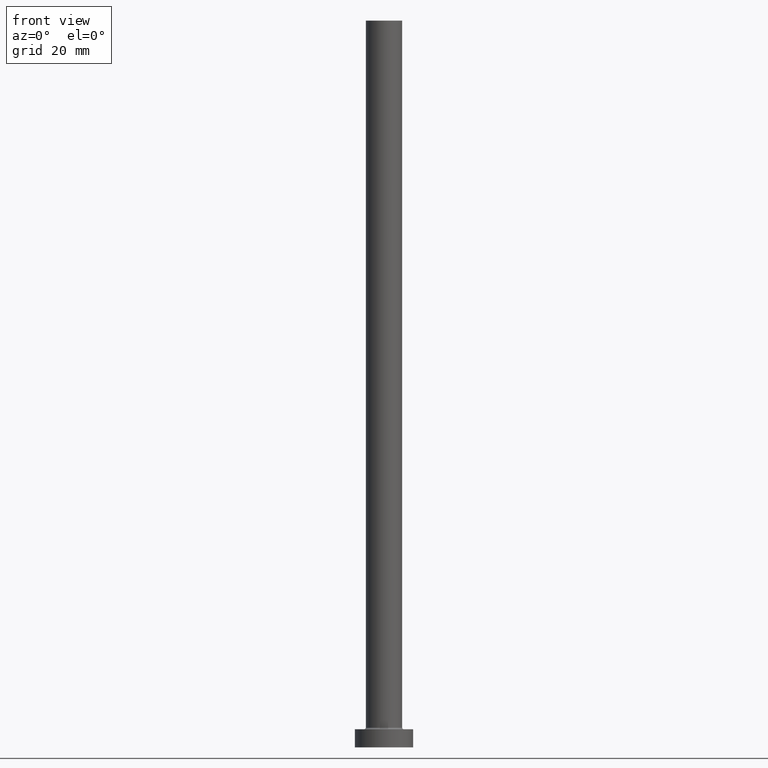
[diagram: clean part render]
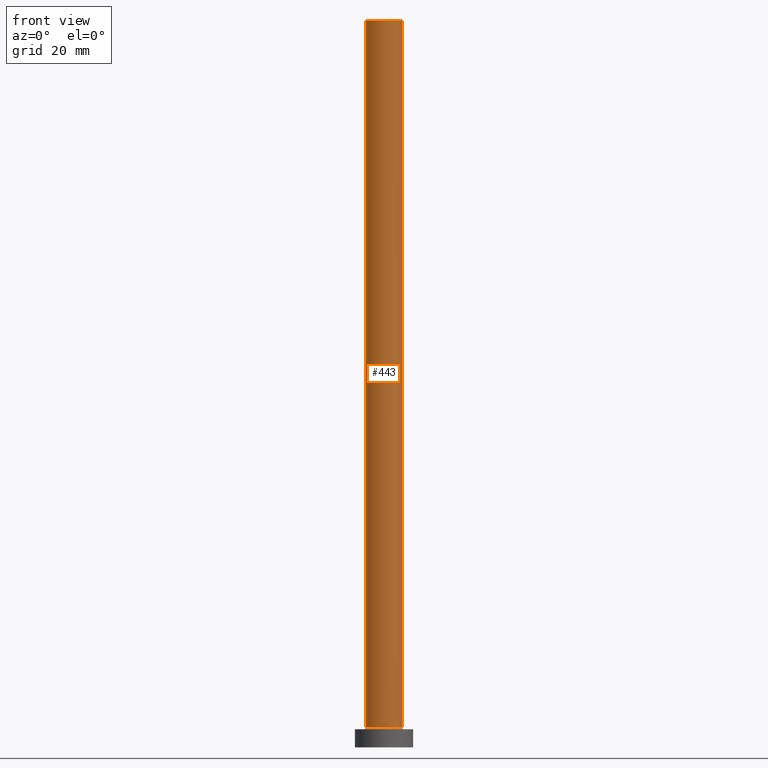
[diagram: same view with one face highlighted and labeled with its STEP entity id]
A machine part, front view. The second image highlights one B-rep face of the part: STEP entity #443.
In plain terms, the highlighted cylindrical surface (edge-blend (fillet) strip) has radius 5 mm, axis along (-0, -0, -1).
Its self-contained STEP definition (entity closure, byte-faithful):
#3 = ORIENTED_EDGE ( 'NONE', *, *, #193, .T. ) ;
#10 = DIRECTION ( 'NONE',  ( 0.000000000000000000, 0.000000000000000000, 1.000000000000000000 ) ) ;
#33 = VERTEX_POINT ( 'NONE', #127 ) ;
#34 = EDGE_CURVE ( 'NONE', #154, #33, #101, .T. ) ;
#67 = LINE ( 'NONE', #346, #421 ) ;
#82 = CARTESIAN_POINT ( 'NONE',  ( 0.000000000000000000, 0.000000000000000000, 200.0000000000000000 ) ) ;
#85 = ORIENTED_EDGE ( 'NONE', *, *, #34, .T. ) ;
#87 = CARTESIAN_POINT ( 'NONE',  ( 0.000000000000000000, 0.000000000000000000, 5.500000000000005329 ) ) ;
#101 = LINE ( 'NONE', #300, #265 ) ;
#119 = AXIS2_PLACEMENT_3D ( 'NONE', #87, #441, #226 ) ;
#126 = CIRCLE ( 'NONE', #390, 5.000000000000000000 ) ;
#127 = CARTESIAN_POINT ( 'NONE',  ( -5.000000000000000000, 0.000000000000000000, 5.500000000000005329 ) ) ;
#130 = DIRECTION ( 'NONE',  ( -0.000000000000000000, -0.000000000000000000, -1.000000000000000000 ) ) ;
#140 = AXIS2_PLACEMENT_3D ( 'NONE', #453, #423, #316 ) ;
#154 = VERTEX_POINT ( 'NONE', #261 ) ;
#157 = DIRECTION ( 'NONE',  ( 1.000000000000000000, 0.000000000000000000, 0.000000000000000000 ) ) ;
#170 = CYLINDRICAL_SURFACE ( 'NONE', #140, 5.000000000000000000 ) ;
#179 = VERTEX_POINT ( 'NONE', #404 ) ;
#181 = CARTESIAN_POINT ( 'NONE',  ( 5.000000000000000000, 6.123233995736766282E-16, 200.0000000000000000 ) ) ;
#193 = EDGE_CURVE ( 'NONE', #33, #179, #239, .T. ) ;
#205 = FACE_OUTER_BOUND ( 'NONE', #416, .T. ) ;
#214 = ORIENTED_EDGE ( 'NONE', *, *, #250, .F. ) ;
#226 = DIRECTION ( 'NONE',  ( 1.000000000000000000, 0.000000000000000000, 0.000000000000000000 ) ) ;
#239 = CIRCLE ( 'NONE', #119, 5.000000000000000000 ) ;
#243 = DIRECTION ( 'NONE',  ( -0.000000000000000000, -0.000000000000000000, -1.000000000000000000 ) ) ;
#250 = EDGE_CURVE ( 'NONE', #154, #457, #126, .T. ) ;
#261 = CARTESIAN_POINT ( 'NONE',  ( -5.000000000000000000, 0.000000000000000000, 200.0000000000000000 ) ) ;
#265 = VECTOR ( 'NONE', #130, 1000.000000000000000 ) ;
#282 = ORIENTED_EDGE ( 'NONE', *, *, #425, .F. ) ;
#300 = CARTESIAN_POINT ( 'NONE',  ( -5.000000000000000000, 0.000000000000000000, 200.0000000000000000 ) ) ;
#316 = DIRECTION ( 'NONE',  ( -1.000000000000000000, 0.000000000000000000, 0.000000000000000000 ) ) ;
#346 = CARTESIAN_POINT ( 'NONE',  ( 5.000000000000000000, 6.123233995736766282E-16, 200.0000000000000000 ) ) ;
#390 = AXIS2_PLACEMENT_3D ( 'NONE', #82, #10, #157 ) ;
#404 = CARTESIAN_POINT ( 'NONE',  ( 5.000000000000000000, 6.123233995736766282E-16, 5.500000000000005329 ) ) ;
#416 = EDGE_LOOP ( 'NONE', ( #282, #214, #85, #3 ) ) ;
#421 = VECTOR ( 'NONE', #243, 1000.000000000000000 ) ;
#423 = DIRECTION ( 'NONE',  ( -0.000000000000000000, -0.000000000000000000, -1.000000000000000000 ) ) ;
#425 = EDGE_CURVE ( 'NONE', #457, #179, #67, .T. ) ;
#441 = DIRECTION ( 'NONE',  ( 0.000000000000000000, 0.000000000000000000, 1.000000000000000000 ) ) ;
#443 = ADVANCED_FACE ( 'NONE', ( #205 ), #170, .T. ) ;
#453 = CARTESIAN_POINT ( 'NONE',  ( 0.000000000000000000, 0.000000000000000000, 200.0000000000000000 ) ) ;
#457 = VERTEX_POINT ( 'NONE', #181 ) ;